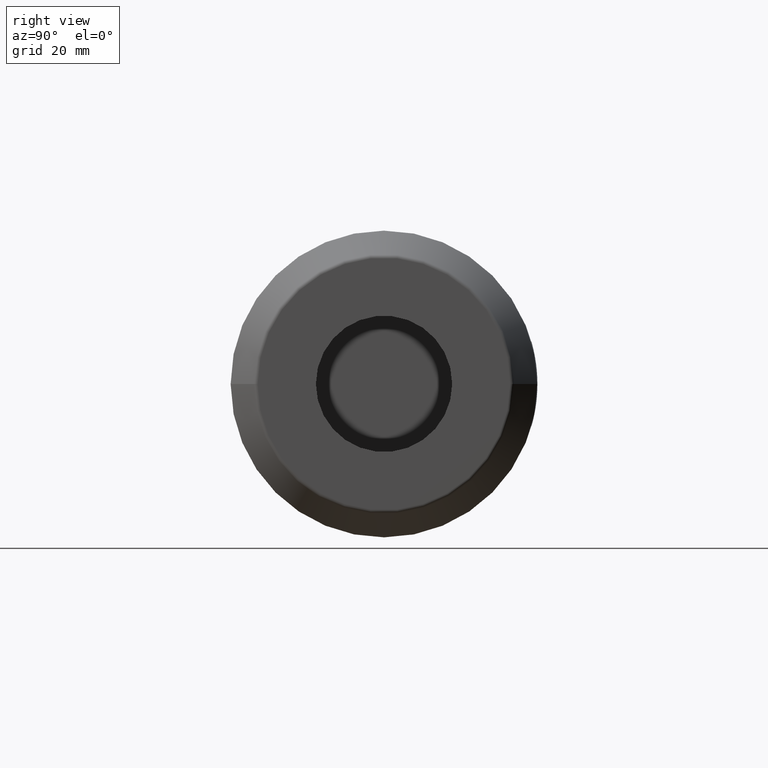
[diagram: clean part render]
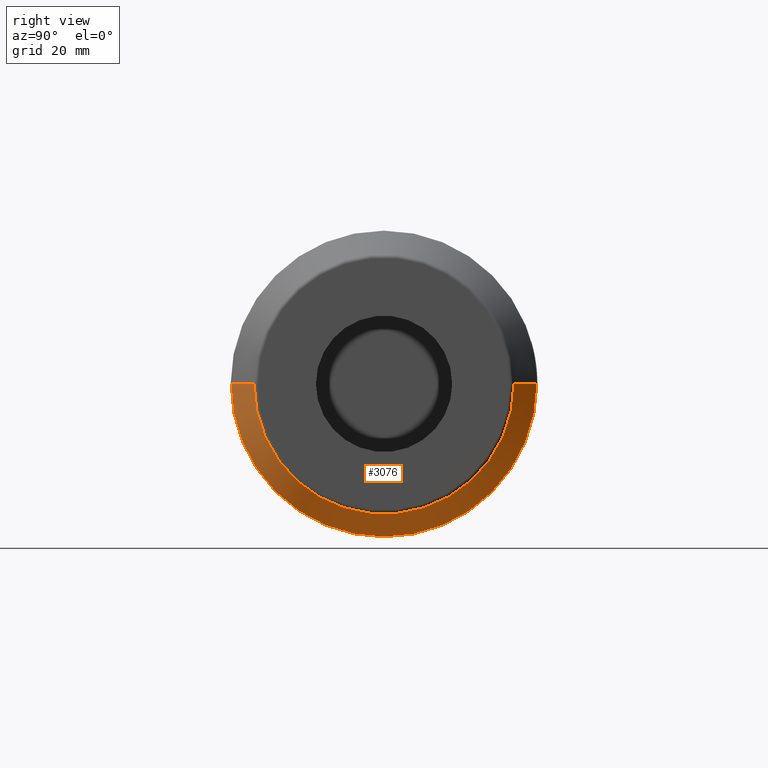
[diagram: same view with one face highlighted and labeled with its STEP entity id]
A machine part, right view. The second image highlights one B-rep face of the part: STEP entity #3076.
In plain terms, the highlighted conical surface has half-angle 30 deg.
Its self-contained STEP definition (entity closure, byte-faithful):
#1274=CARTESIAN_POINT('',(6.023205080757E1,0.E0,0.E0));
#1275=DIRECTION('',(-1.E0,0.E0,0.E0));
#1276=DIRECTION('',(0.E0,1.E0,0.E0));
#1277=AXIS2_PLACEMENT_3D('',#1274,#1275,#1276);
#1279=DIRECTION('',(-8.660254037844E-1,-5.E-1,3.924140642700E-14));
#1280=VECTOR('',#1279,1.070170592217E1);
#1281=CARTESIAN_POINT('',(6.95E1,-3.051517244270E1,2.232296170674E-14));
#1282=LINE('',#1281,#1280);
#1283=CARTESIAN_POINT('',(6.95E1,0.E0,0.E0));
#1284=DIRECTION('',(-1.E0,0.E0,0.E0));
#1285=DIRECTION('',(0.E0,1.E0,0.E0));
#1286=AXIS2_PLACEMENT_3D('',#1283,#1284,#1285);
#1288=DIRECTION('',(-8.660254037844E-1,5.E-1,-3.797095439940E-14));
#1289=VECTOR('',#1288,1.070170592217E1);
#1290=CARTESIAN_POINT('',(6.95E1,3.051517244270E1,-3.002264096949E-14));
#1291=LINE('',#1290,#1289);
#1778=CARTESIAN_POINT('',(6.023205080757E1,3.586602540378E1,0.E0));
#1779=CARTESIAN_POINT('',(6.023205080757E1,-3.586602540378E1,0.E0));
#1780=VERTEX_POINT('',#1778);
#1781=VERTEX_POINT('',#1779);
#1782=CARTESIAN_POINT('',(6.95E1,3.051517244270E1,0.E0));
#1783=CARTESIAN_POINT('',(6.95E1,-3.051517244270E1,0.E0));
#1784=VERTEX_POINT('',#1782);
#1785=VERTEX_POINT('',#1783);
#3062=CARTESIAN_POINT('',(6.486602540378E1,0.E0,0.E0));
#3063=DIRECTION('',(-1.E0,0.E0,0.E0));
#3064=DIRECTION('',(0.E0,1.E0,0.E0));
#3065=AXIS2_PLACEMENT_3D('',#3062,#3063,#3064);
#3066=CONICAL_SURFACE('',#3065,3.319059892324E1,3.E1);
#3067=ORIENTED_EDGE('',*,*,#3056,.T.);
#3069=ORIENTED_EDGE('',*,*,#3068,.F.);
#3071=ORIENTED_EDGE('',*,*,#3070,.F.);
#3073=ORIENTED_EDGE('',*,*,#3072,.T.);
#3074=EDGE_LOOP('',(#3067,#3069,#3071,#3073));
#3075=FACE_OUTER_BOUND('',#3074,.F.);
#3076=ADVANCED_FACE('',(#3075),#3066,.T.);
#1278=CIRCLE('',#1277,3.586602540378E1);
#1287=CIRCLE('',#1286,3.051517244270E1);
#3056=EDGE_CURVE('',#1780,#1781,#1278,.T.);
#3068=EDGE_CURVE('',#1785,#1781,#1282,.T.);
#3070=EDGE_CURVE('',#1784,#1785,#1287,.T.);
#3072=EDGE_CURVE('',#1784,#1780,#1291,.T.);